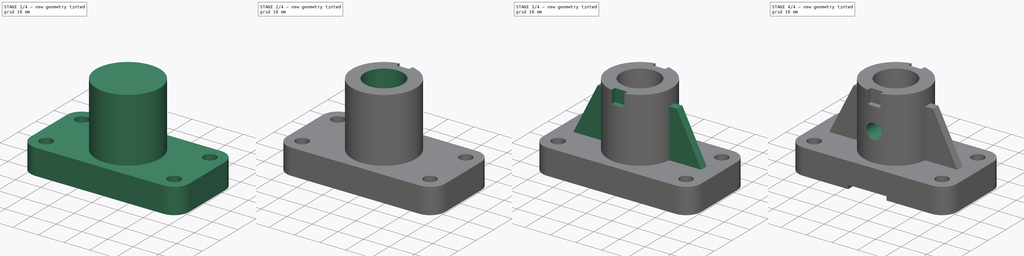
[diagram: build sequence overview — one tinted view per stage of 4, left to right]
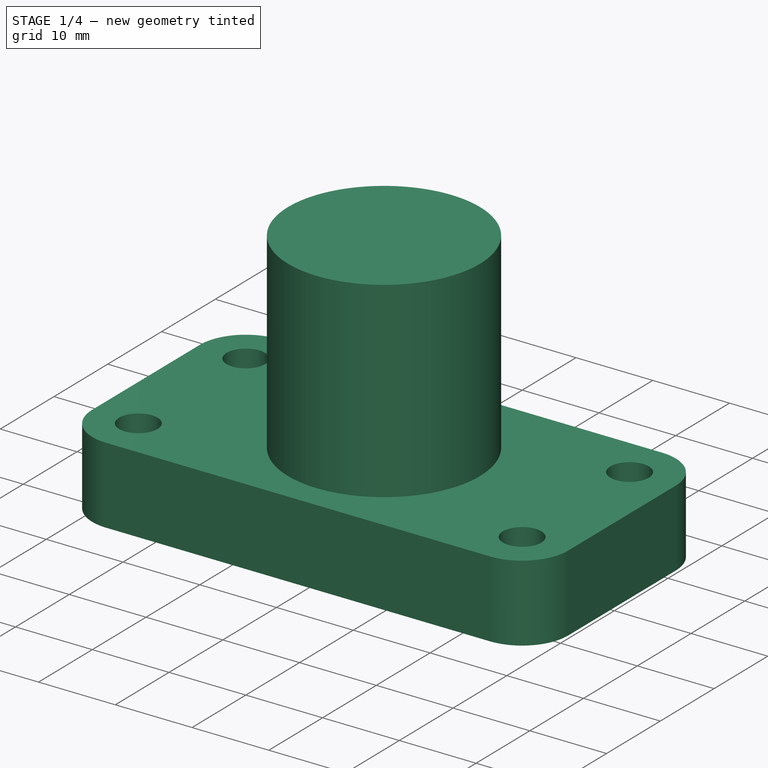
[diagram: stage 1 of 4 — iso view after this stage's code; geometry added in this stage tinted green]
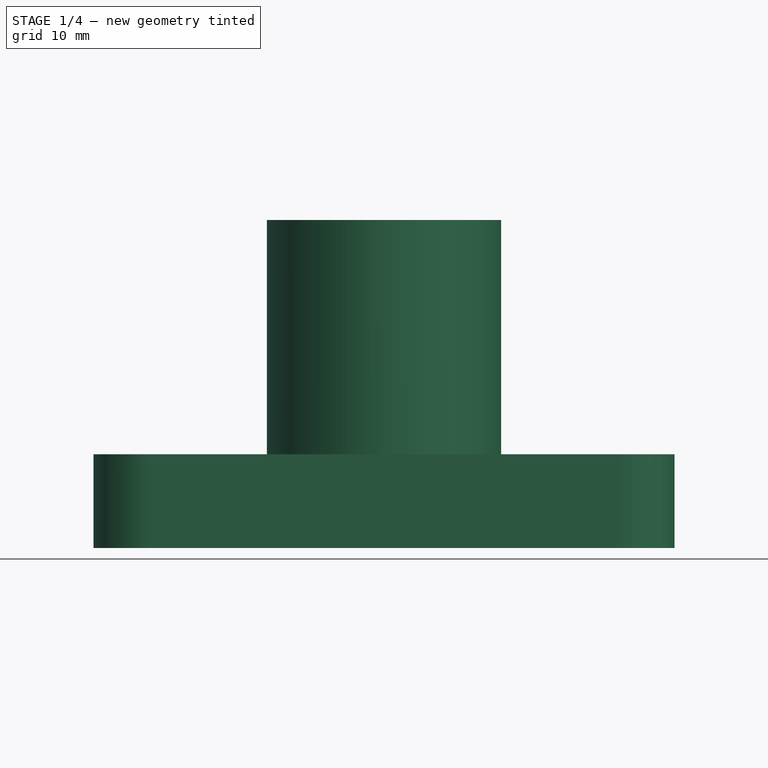
[diagram: stage 1 of 4 — front view after this stage's code; geometry added in this stage tinted green]
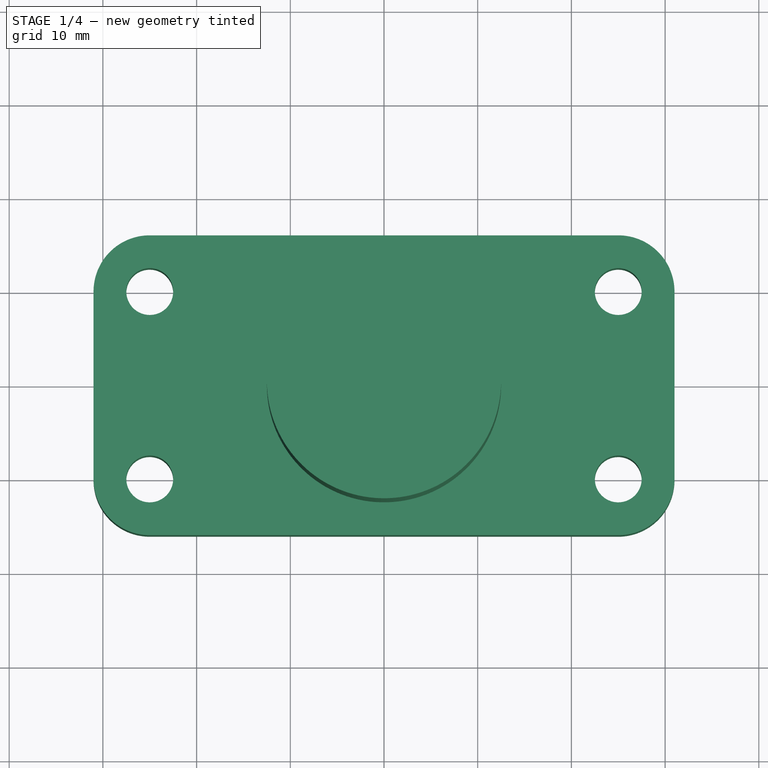
[diagram: stage 1 of 4 — top view after this stage's code; geometry added in this stage tinted green]
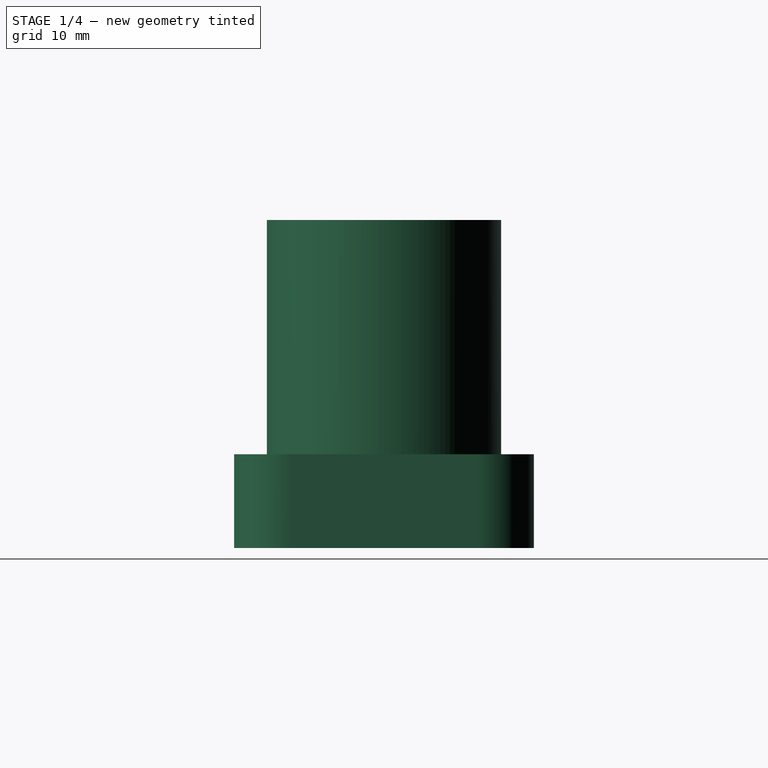
[diagram: stage 1 of 4 — right view after this stage's code; geometry added in this stage tinted green]
FCSTD DOCUMENT  (FreeCAD 0.20R29603 (Git))
Label: part05
License: All rights reserved
LicenseURL: http://en.wikipedia.org/wiki/All_rights_reserved
objects: Sketcher::SketchObject×7, PartDesign::Pocket×4, PartDesign::Pad×3, PartDesign::Point×2, PartDesign::Plane×2, PartDesign::PolarPattern×1, PartDesign::Mirrored×1, PartDesign::Body×1
note: 28 computed .brp shape members not serialized (recipe doc carries the construction recipe); baked Part::Feature solids carry a one-line shape summary decoded from their .brp

FEATURE [Sketcher::SketchObject] Sketch
  FullyConstrained = true
  MapMode = 5
  Support = -> [XY_Plane]
  sketch-geometry (14):
    g0: ArcOfCircle CenterX=-25 CenterY=10 CenterZ=0 NormalX=0 NormalY=0 NormalZ=1 AngleXU=0 Radius=6 StartAngle=1.5708 EndAngle=3.14159
    g1: LineSegment StartX=-25 StartY=16 StartZ=0 EndX=25 EndY=16 EndZ=0
    g2: ArcOfCircle CenterX=25 CenterY=10 CenterZ=0 NormalX=0 NormalY=0 NormalZ=1 AngleXU=0 Radius=6 StartAngle=0 EndAngle=1.5708
    g3: LineSegment StartX=31 StartY=10 StartZ=0 EndX=31 EndY=-10 EndZ=0
    g4: ArcOfCircle CenterX=25 CenterY=-10 CenterZ=0 NormalX=0 NormalY=0 NormalZ=1 AngleXU=0 Radius=6 StartAngle=4.71239 EndAngle=6.28319
    g5: LineSegment StartX=25 StartY=-16 StartZ=0 EndX=-25 EndY=-16 EndZ=0
    g6: ArcOfCircle CenterX=-25 CenterY=-10 CenterZ=0 NormalX=0 NormalY=0 NormalZ=1 AngleXU=0 Radius=6 StartAngle=3.14159 EndAngle=4.71239
    g7: LineSegment StartX=-31 StartY=-10 StartZ=0 EndX=-31 EndY=10 EndZ=0
    g8: GeomPoint X=-31 Y=16 Z=0
    g9: GeomPoint X=31 Y=-16 Z=0
    g10: Circle CenterX=-25 CenterY=-10 CenterZ=0 NormalX=0 NormalY=0 NormalZ=1 AngleXU=0 Radius=2.5
    g11: Circle CenterX=-25 CenterY=10 CenterZ=0 NormalX=0 NormalY=0 NormalZ=1 AngleXU=0 Radius=2.5
    g12: Circle CenterX=25 CenterY=-10 CenterZ=0 NormalX=0 NormalY=0 NormalZ=1 AngleXU=0 Radius=2.5
    g13: Circle CenterX=25 CenterY=10 CenterZ=0 NormalX=0 NormalY=0 NormalZ=1 AngleXU=0 Radius=2.5
  constraints (31):
    c: Tangent(g0,g1) = 1.5708
    c: Tangent(g1,g2) = 1.5708
    c: Tangent(g2,g3) = 1.5708
    c: Tangent(g3,g4) = 1.5708
    c: Tangent(g4,g5) = 1.5708
    c: Tangent(g5,g6) = 1.5708
    c: Tangent(g6,g7) = 1.5708
    c: Tangent(g7,g0) = 1.5708
    c: Horizontal(g1)
    c: Horizontal(g5)
    c: Vertical(g3)
    c: Vertical(g7)
    c: Equal(g0,g2)
    c: Equal(g2,g4)
    c: Equal(g4,g6)
    c: PointOnObject(g8,g1)
    c: PointOnObject(g8,g7)
    c: PointOnObject(g9,g3)
    c: PointOnObject(g9,g5)
    c: Symmetric(g0,g4,g-1)
    c: Radius(g0) = 6
    c: DistanceY(g7,g7) = 20
    c: DistanceX(g5,g5) = 50
    c: Coincident(g10,g6)
    c: Coincident(g11,g0)
    c: Coincident(g12,g4)
    c: Coincident(g13,g2)
    c: Equal(g10,g11)
    c: Equal(g11,g12)
    c: Equal(g12,g13)
    c: Diameter(g10) = 5
FEATURE [PartDesign::Pad] Pad
  Direction = (0,0,1)
  Length = 10
  Length2 = 10
  Profile = -> Sketch
  ReferenceAxis = -> Sketch [N_Axis]
  Refine = true
  Type = 0
FEATURE [Sketcher::SketchObject] Sketch001
  FullyConstrained = true
  MapMode = 5
  Placement = pos=(0,0,10) rot=(0,0,1;0rad)
  Support = -> [Pad]
  sketch-geometry (1):
    g0: Circle CenterX=0 CenterY=0 CenterZ=0 NormalX=0 NormalY=0 NormalZ=1 AngleXU=0 Radius=12.5
  constraints (2):
    c: Coincident(g0,g-1)
    c: Diameter(g0) = 25
FEATURE [PartDesign::Pad] Pad001
  BaseFeature = -> Pad
  Direction = (0,0,1)
  Length = 25
  Length2 = 10
  Profile = -> Sketch001
  ReferenceAxis = -> Sketch001 [N_Axis]
  Refine = true
  Type = 0
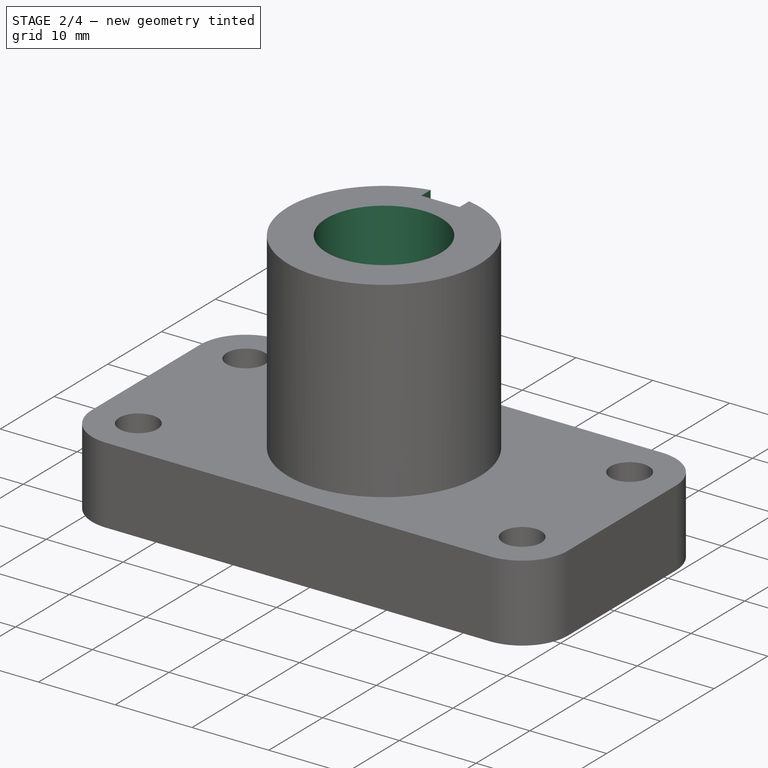
[diagram: stage 2 of 4 — iso view after this stage's code; geometry added in this stage tinted green]
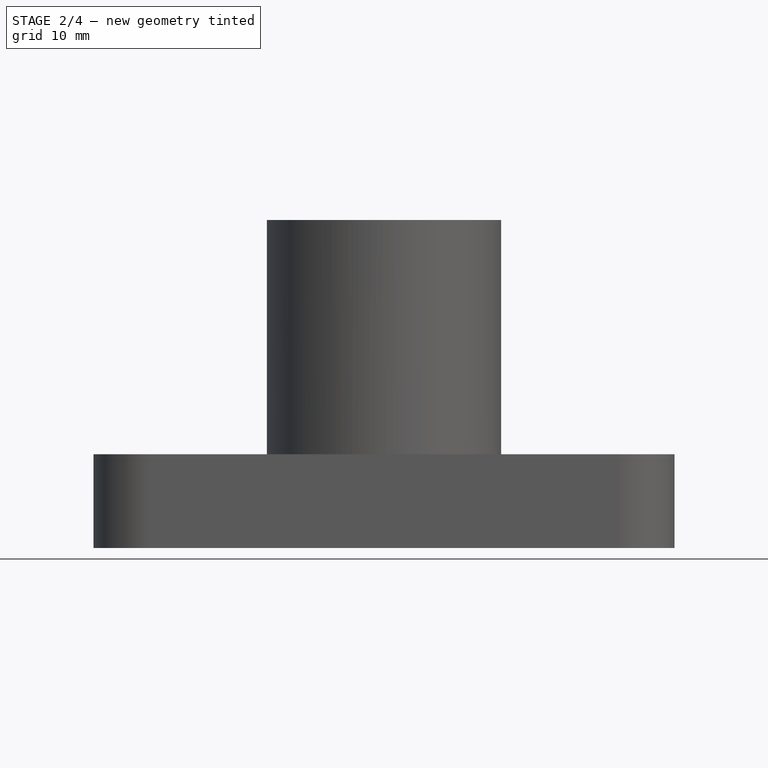
[diagram: stage 2 of 4 — front view after this stage's code; geometry added in this stage tinted green]
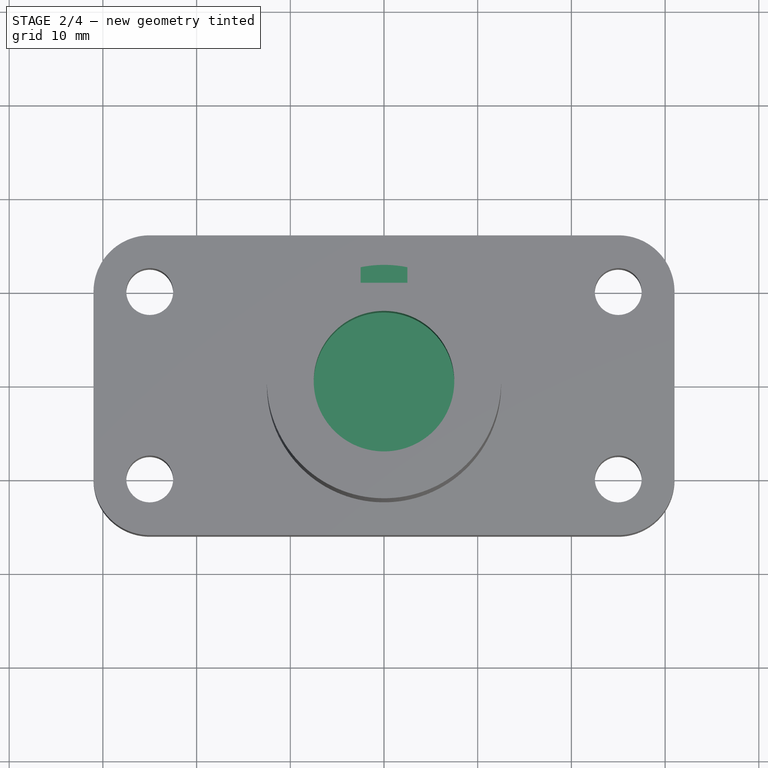
[diagram: stage 2 of 4 — top view after this stage's code; geometry added in this stage tinted green]
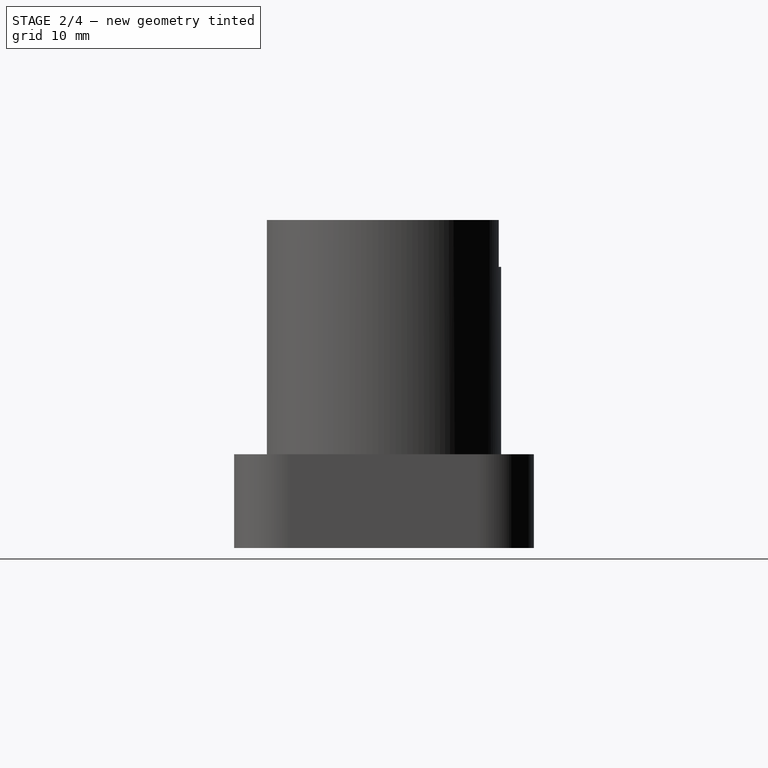
[diagram: stage 2 of 4 — right view after this stage's code; geometry added in this stage tinted green]
FEATURE [Sketcher::SketchObject] Sketch002
  FullyConstrained = true
  MapMode = 5
  Placement = pos=(0,0,35) rot=(0,0,1;0rad)
  Support = -> [Pad001]
  sketch-geometry (1):
    g0: Circle CenterX=0 CenterY=0 CenterZ=0 NormalX=0 NormalY=0 NormalZ=1 AngleXU=0 Radius=7.5
  constraints (2):
    c: Coincident(g0,g-1)
    c: Diameter(g0) = 15
FEATURE [PartDesign::Pocket] Pocket
  BaseFeature = -> Pad001
  Direction = (0,0,-1)
  Length = 10
  Length2 = 5
  Profile = -> Sketch002
  ReferenceAxis = -> Sketch002 [N_Axis]
  Refine = true
  Type = 0
FEATURE [Sketcher::SketchObject] Sketch003
  FullyConstrained = false
  MapMode = 5
  Placement = pos=(0,0,35) rot=(0,0,1;0rad)
  Support = -> [Pocket]
  sketch-geometry (4):
    g0: LineSegment StartX=-2.5 StartY=14.0239 StartZ=0 EndX=2.5 EndY=14.0239 EndZ=0
    g1: LineSegment StartX=2.5 StartY=14.0239 StartZ=0 EndX=2.5 EndY=10.5 EndZ=0
    g2: LineSegment StartX=2.5 StartY=10.5 StartZ=0 EndX=-2.5 EndY=10.5 EndZ=0
    g3: LineSegment StartX=-2.5 StartY=10.5 StartZ=0 EndX=-2.5 EndY=14.0239 EndZ=0
  constraints (10):
    c: Coincident(g0,g1)
    c: Coincident(g1,g2)
    c: Coincident(g2,g3)
    c: Coincident(g3,g0)
    c: Horizontal(g0)
    c: Vertical(g1)
    c: Vertical(g3)
    c: Symmetric(g1,g2,g-2)
    c: DistanceY(g-1,g2) = 10.5
    c: DistanceX(g2,g2) = 5
FEATURE [PartDesign::Pocket] Pocket001
  BaseFeature = -> Pocket
  Direction = (0,0,-1)
  Length = 5
  Length2 = 5
  Profile = -> Sketch003
  ReferenceAxis = -> Sketch003 [N_Axis]
  Refine = true
  Type = 0
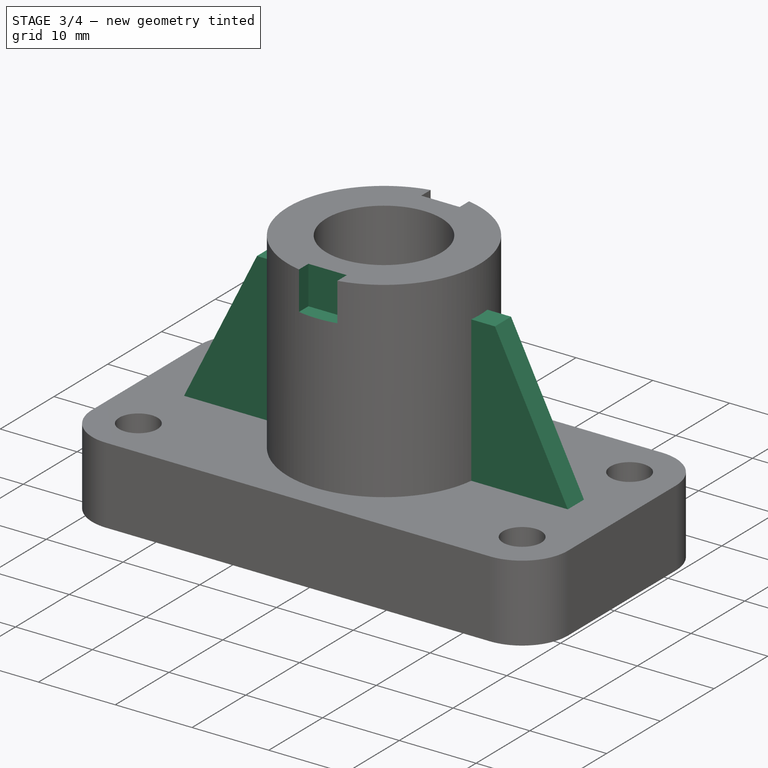
[diagram: stage 3 of 4 — iso view after this stage's code; geometry added in this stage tinted green]
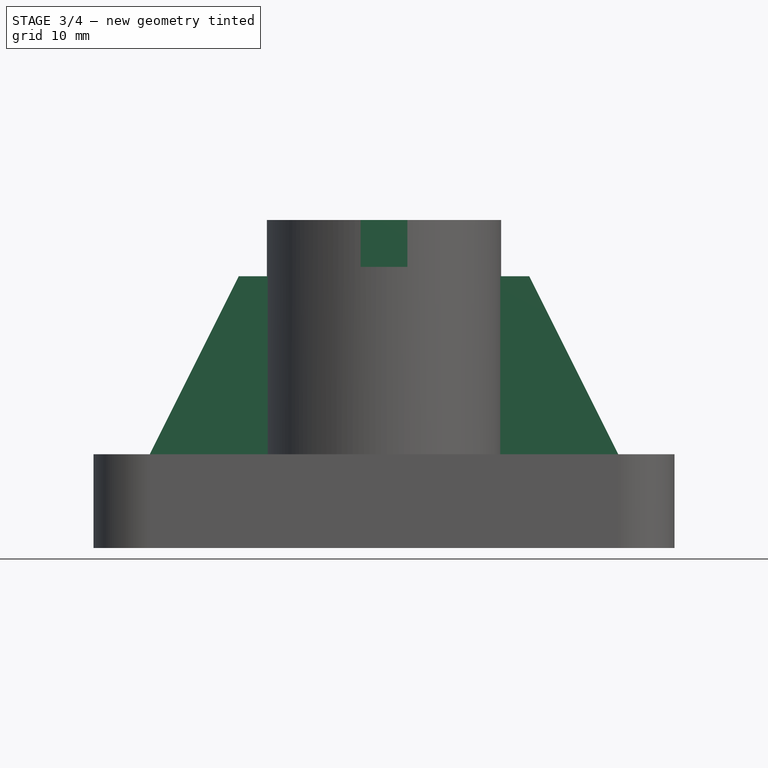
[diagram: stage 3 of 4 — front view after this stage's code; geometry added in this stage tinted green]
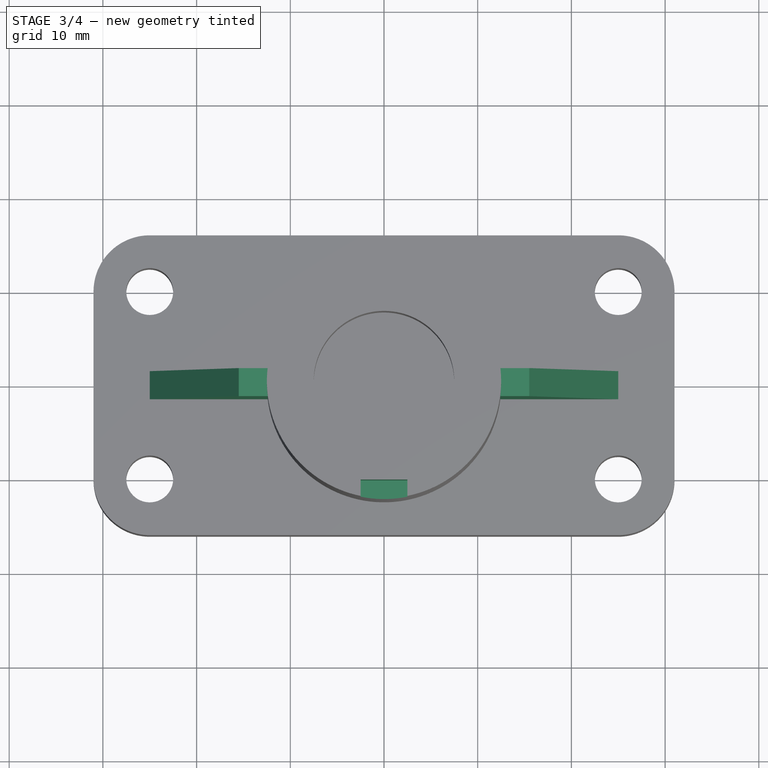
[diagram: stage 3 of 4 — top view after this stage's code; geometry added in this stage tinted green]
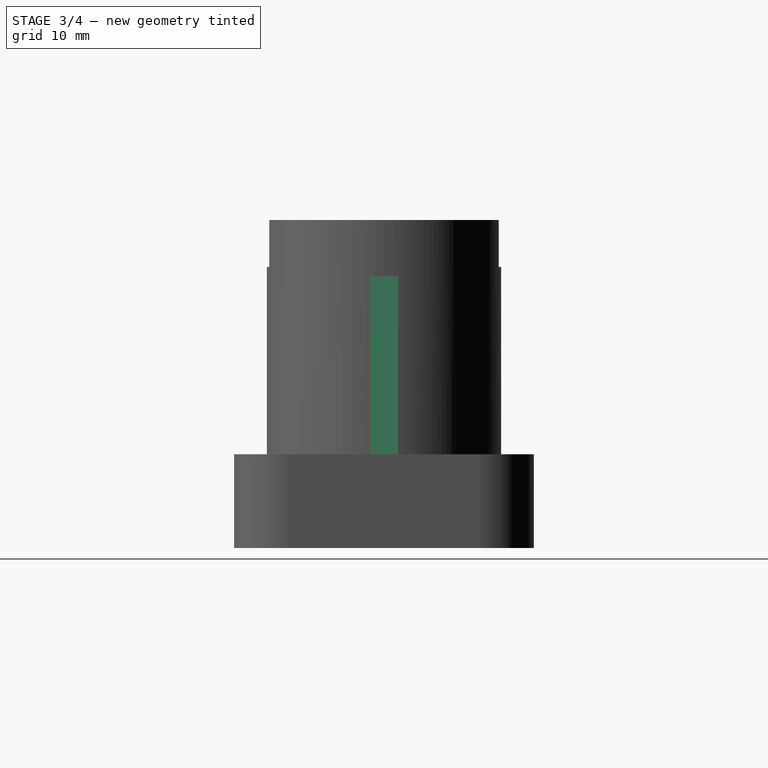
[diagram: stage 3 of 4 — right view after this stage's code; geometry added in this stage tinted green]
FEATURE [PartDesign::PolarPattern] PolarPattern
  Angle = 360
  Axis = -> Sketch003 [N_Axis]
  BaseFeature = -> Pocket001
  Occurrences = 2
  Originals = -> [Pocket001]
  Refine = true
FEATURE [PartDesign::Point] DatumPoint
  AttacherType = Attacher::AttachEnginePoint
  MapMode = 37
  Placement = pos=(12.5,0,35) rot=(0,0,1;0rad)
  Support = -> [PolarPattern]
FEATURE [PartDesign::Plane] DatumPlane
  Length = 74.1984
  MapMode = 6
  Placement = pos=(12.5,0,35) rot=(1,0,0;1.5708rad)
  ResizeMode = 0
  Support = -> [DatumPoint,PolarPattern]
  Width = 72.1984
FEATURE [Sketcher::SketchObject] Sketch004
  ExternalGeometry = -> [PolarPattern]
  FullyConstrained = true
  MapMode = 5
  Placement = pos=(12.5,0,35) rot=(1,0,0;1.5708rad)
  Support = -> [DatumPlane]
  sketch-geometry (4):
    g0: LineSegment StartX=-0.2 StartY=-6 StartZ=0 EndX=3 EndY=-6 EndZ=0
    g1: LineSegment StartX=3 StartY=-6 StartZ=0 EndX=12.5 EndY=-25 EndZ=0
    g2: LineSegment StartX=12.5 StartY=-25 StartZ=0 EndX=-0.2 EndY=-25 EndZ=0
    g3: LineSegment StartX=-0.2 StartY=-25 StartZ=0 EndX=-0.2 EndY=-6 EndZ=0
  constraints (11):
    c: Horizontal(g0)
    c: Coincident(g0,g1)
    c: Coincident(g1,g-4)
    c: Coincident(g1,g2)
    c: PointOnObject(g2,g-4)
    c: Coincident(g2,g3)
    c: Coincident(g3,g0)
    c: Vertical(g3)
    c: DistanceY(g3,g3) = 19
    c: Distance(g0,g-3) = 0.2
    c: Distance(g0,g-3) = 3
FEATURE [PartDesign::Pad] Pad002
  BaseFeature = -> PolarPattern
  Direction = (0,-1,2e-16)
  Length = 3
  Length2 = 10
  Midplane = true
  Profile = -> Sketch004
  ReferenceAxis = -> Sketch004 [N_Axis]
  Refine = true
  Type = 0
FEATURE [PartDesign::Mirrored] Mirrored
  BaseFeature = -> Pad002
  MirrorPlane = -> YZ_Plane
  Originals = -> [Pad002]
  Refine = true
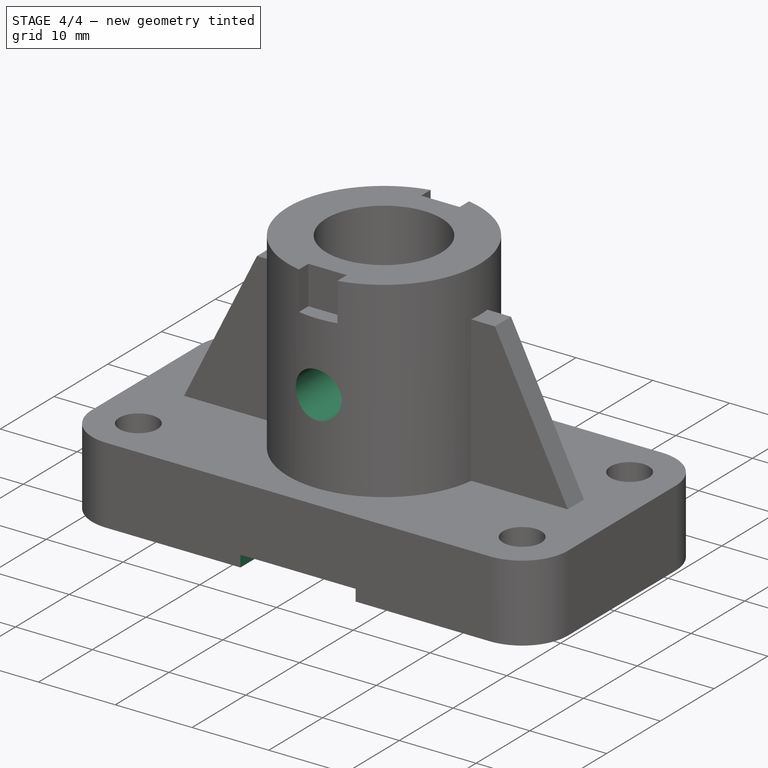
[diagram: stage 4 of 4 — iso view after this stage's code; geometry added in this stage tinted green]
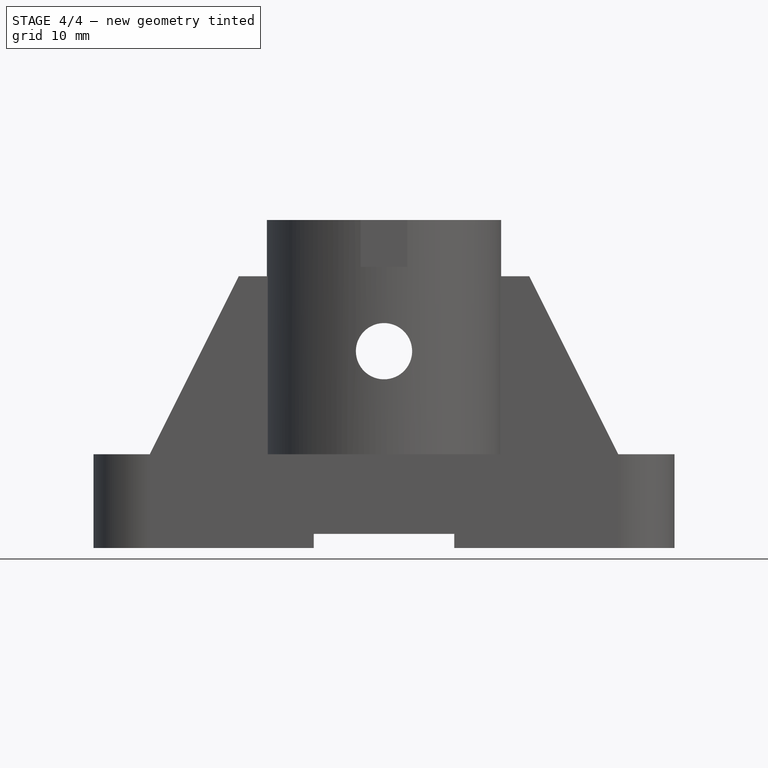
[diagram: stage 4 of 4 — front view after this stage's code; geometry added in this stage tinted green]
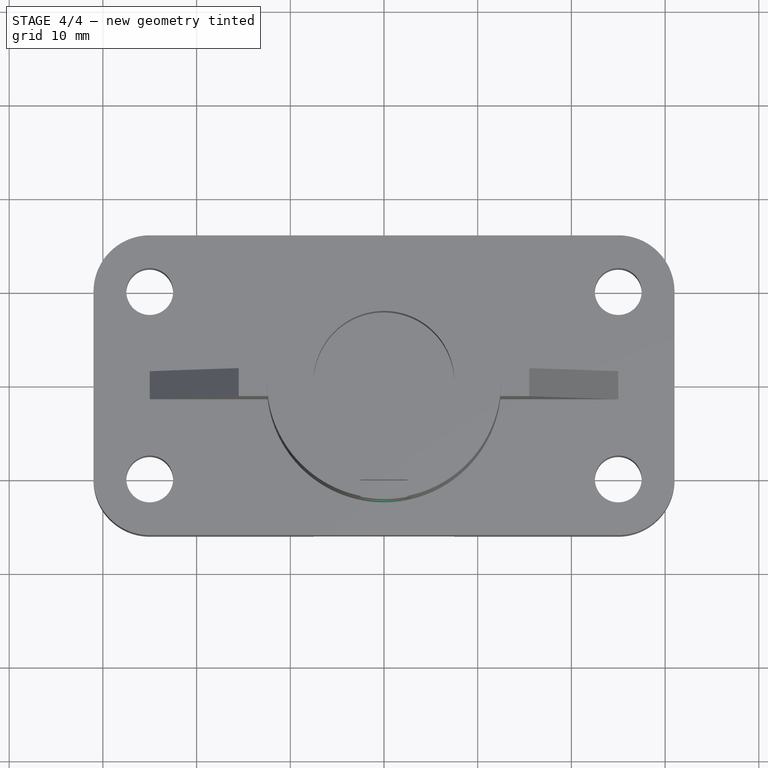
[diagram: stage 4 of 4 — top view after this stage's code; geometry added in this stage tinted green]
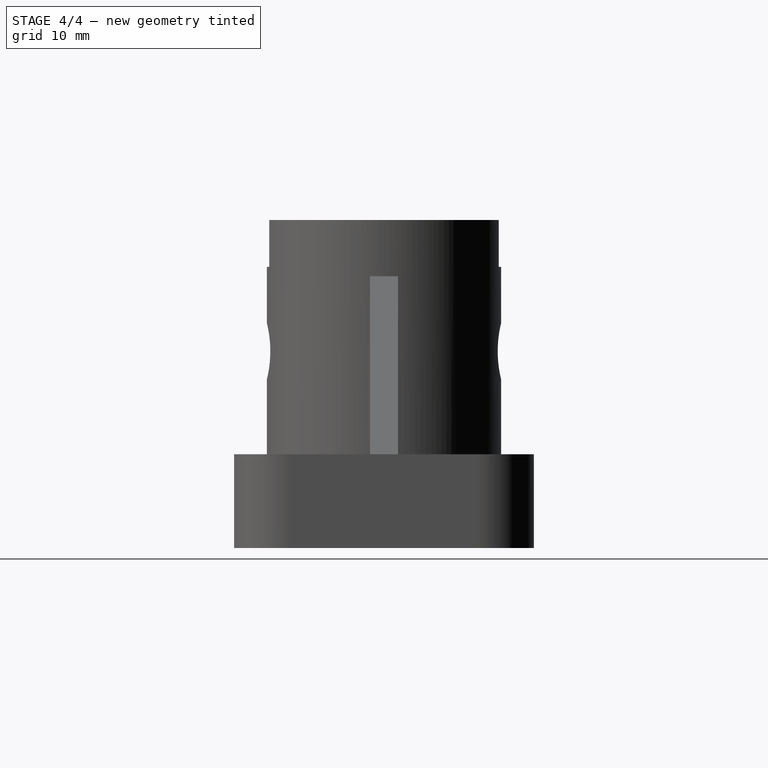
[diagram: stage 4 of 4 — right view after this stage's code; geometry added in this stage tinted green]
FEATURE [PartDesign::Point] DatumPoint001
  AttacherType = Attacher::AttachEnginePoint
  MapMode = 37
  Placement = pos=(-1.6e-15,-12.2474,30) rot=(0,0,1;0rad)
  Support = -> [Mirrored]
FEATURE [PartDesign::Plane] DatumPlane001
  Length = 74.1984
  MapMode = 6
  Placement = pos=(-1.6e-15,-12.2474,30) rot=(1,0,0;1.5708rad)
  ResizeMode = 0
  Support = -> [DatumPoint001,Mirrored]
  Width = 72.1984
FEATURE [Sketcher::SketchObject] Sketch005
  FullyConstrained = true
  MapMode = 5
  Placement = pos=(-1.6e-15,-12.2474,30) rot=(1,0,0;1.5708rad)
  Support = -> [DatumPlane001]
  sketch-geometry (1):
    g0: Circle CenterX=0 CenterY=-9 CenterZ=0 NormalX=0 NormalY=0 NormalZ=1 AngleXU=0 Radius=3
  constraints (3):
    c: PointOnObject(g0,g-2)
    c: Diameter(g0) = 6
    c: DistanceY(g0,g-1) = 9
FEATURE [PartDesign::Pocket] Pocket002
  BaseFeature = -> Mirrored
  Direction = (2e-16,1,-2e-16)
  Length = 5
  Length2 = 5
  Midplane = true
  Profile = -> Sketch005
  ReferenceAxis = -> Sketch005 [N_Axis]
  Refine = true
  Type = 1
FEATURE [Sketcher::SketchObject] Sketch006
  ExternalGeometry = -> [Pocket002]
  FullyConstrained = true
  MapMode = 5
  Placement = pos=(0,-16,0) rot=(1,0,0;1.5708rad)
  Support = -> [Pocket002]
  sketch-geometry (4):
    g0: LineSegment StartX=-7.5 StartY=1.5 StartZ=0 EndX=7.5 EndY=1.5 EndZ=0
    g1: LineSegment StartX=7.5 StartY=1.5 StartZ=0 EndX=7.5 EndY=-1.5 EndZ=0
    g2: LineSegment StartX=7.5 StartY=-1.5 StartZ=0 EndX=-7.5 EndY=-1.5 EndZ=0
    g3: LineSegment StartX=-7.5 StartY=-1.5 StartZ=0 EndX=-7.5 EndY=1.5 EndZ=0
  constraints (11):
    c: Coincident(g0,g1)
    c: Coincident(g1,g2)
    c: Coincident(g2,g3)
    c: Coincident(g3,g0)
    c: Horizontal(g0)
    c: Horizontal(g2)
    c: Vertical(g1)
    c: Vertical(g3)
    c: DistanceX(g2,g2) = 15
    c: Symmetric(g0,g1,g-1)
    c: DistanceY(g0,g-3) = 8.5
FEATURE [PartDesign::Pocket] Pocket003
  BaseFeature = -> Pocket002
  Direction = (0,1,-2e-16)
  Length = 5
  Length2 = 5
  Profile = -> Sketch006
  ReferenceAxis = -> Sketch006 [N_Axis]
  Refine = true
  Type = 1
FEATURE [PartDesign::Body] Body
  Group = -> [Sketch,Pad,Sketch001,Pad001,Sketch002,Pocket,Sketch003,Pocket001,PolarPattern,DatumPoint,DatumPlane,Sketch004,Pad002,Mirrored,DatumPoint001,DatumPlane001,Sketch005,Pocket002,Sketch006,Pocket003]
  Origin = -> Origin
  Tip = -> Pocket003
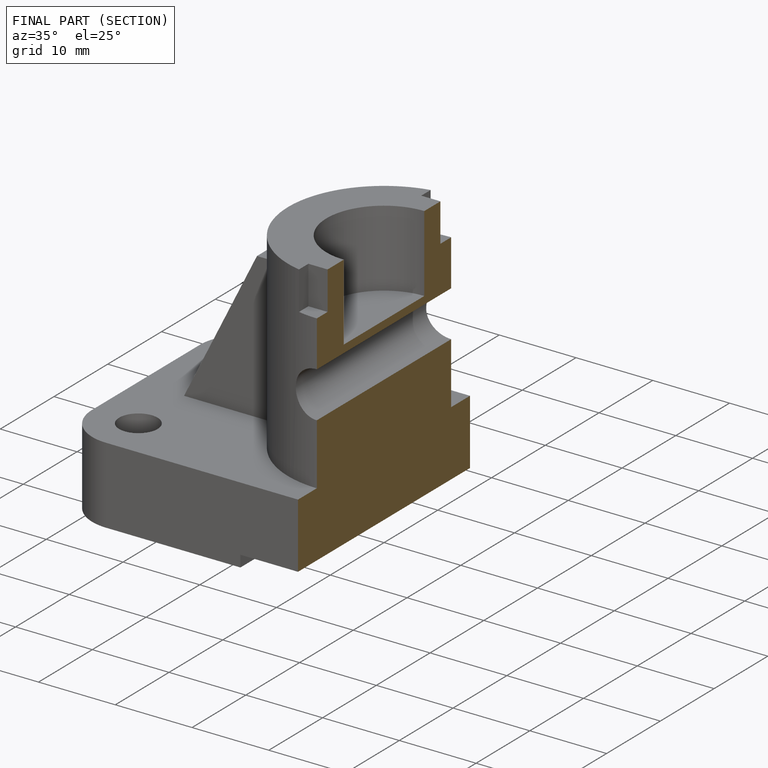
[diagram: finished part — half-section view (interior)]
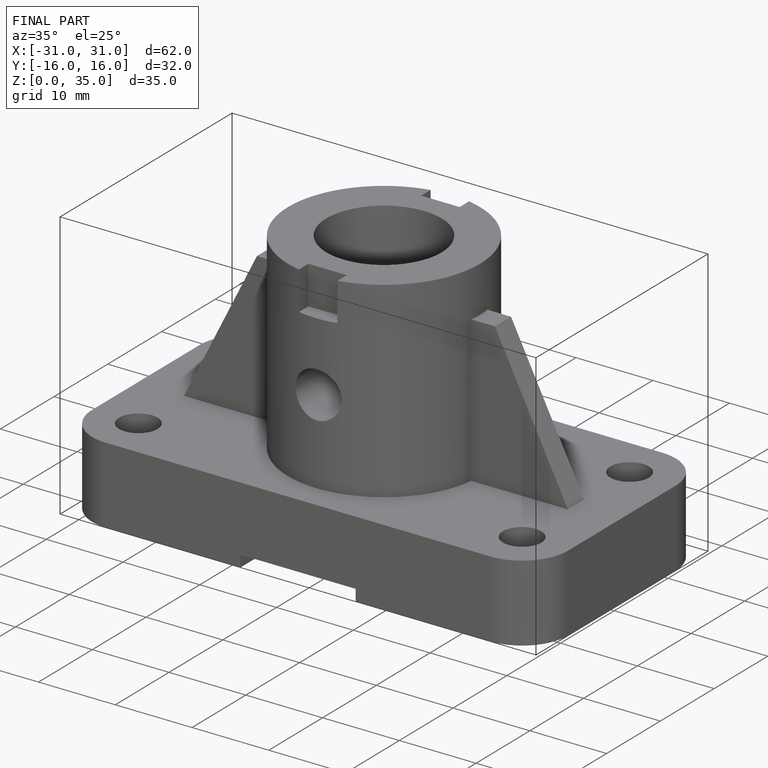
[diagram: finished part — iso view with bounding-box wireframe]
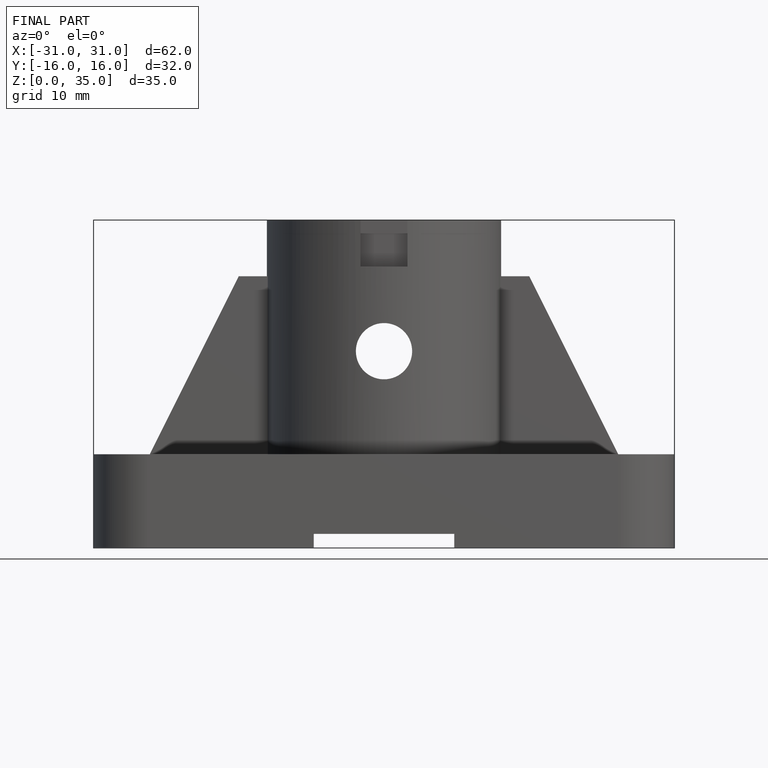
[diagram: finished part — front view with bounding-box wireframe]
